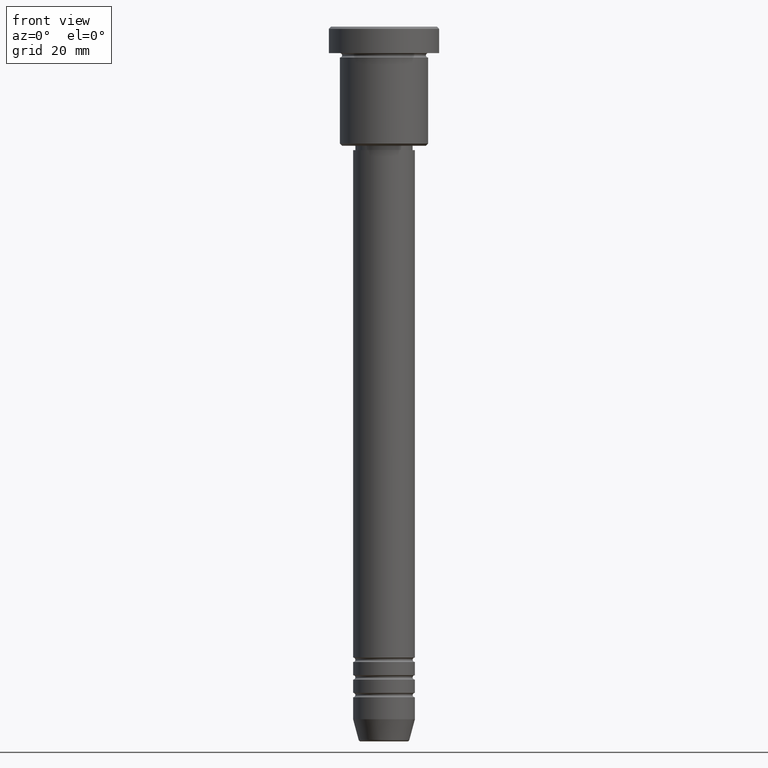
[diagram: clean part render]
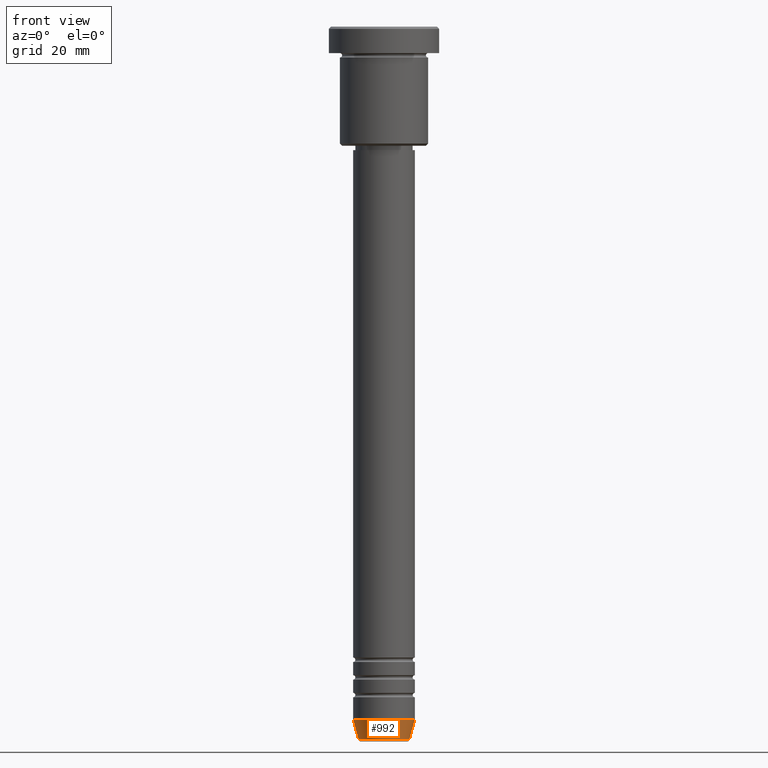
[diagram: same view with one face highlighted and labeled with its STEP entity id]
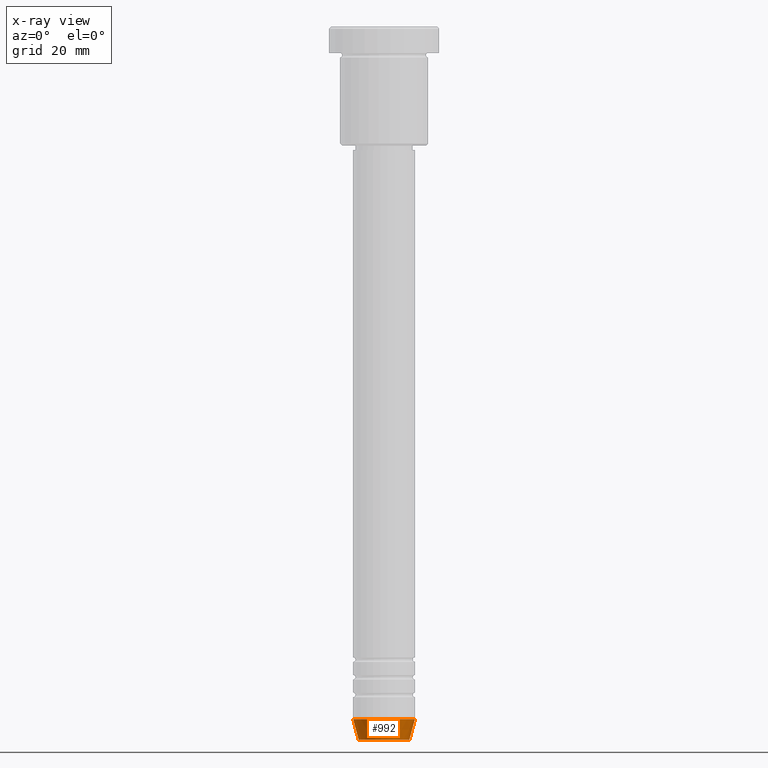
[diagram: x-ray of the same camera — body ghosted, the highlighted face saturated]
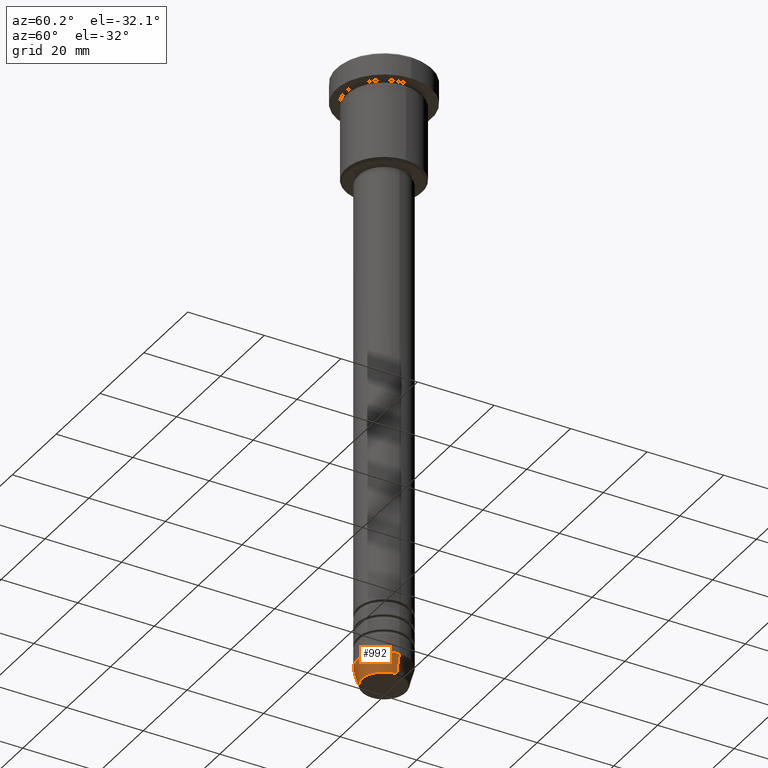
[diagram: same view with one face highlighted and labeled with its STEP entity id]
A machine part, front view. The second image highlights one B-rep face of the part: STEP entity #992.
The next image is the same camera in x-ray: the body ghosted, the highlighted face saturated — about 0% of this face is hidden behind the body in this view.
A second angle (auxiliary view) of the same face is appended — the face is thin or edge-on in the first view.
In plain terms, the highlighted conical surface has half-angle 15 deg.
Its self-contained STEP definition (entity closure, byte-faithful):
#23 = DIRECTION ( 'NONE',  ( 1.000000000000000000, 0.000000000000000000, 0.000000000000000000 ) ) ;
#74 = ORIENTED_EDGE ( 'NONE', *, *, #1054, .T. ) ;
#86 = VERTEX_POINT ( 'NONE', #174 ) ;
#100 = EDGE_CURVE ( 'NONE', #884, #886, #306, .T. ) ;
#105 = DIRECTION ( 'NONE',  ( 1.000000000000000000, 0.000000000000000000, 0.000000000000000000 ) ) ;
#114 = DIRECTION ( 'NONE',  ( -0.000000000000000000, -0.000000000000000000, 1.000000000000000000 ) ) ;
#131 = AXIS2_PLACEMENT_3D ( 'NONE', #848, #114, #23 ) ;
#151 = VERTEX_POINT ( 'NONE', #686 ) ;
#153 = CARTESIAN_POINT ( 'NONE',  ( 0.000000000000000000, 0.000000000000000000, -157.0000000000000284 ) ) ;
#174 = CARTESIAN_POINT ( 'NONE',  ( 5.759553456999435994, 0.000000000000000000, -161.6294095225512706 ) ) ;
#196 = ORIENTED_EDGE ( 'NONE', *, *, #567, .T. ) ;
#213 = AXIS2_PLACEMENT_3D ( 'NONE', #393, #760, #105 ) ;
#228 = VECTOR ( 'NONE', #1074, 1000.000000000000000 ) ;
#293 = CARTESIAN_POINT ( 'NONE',  ( -7.000000000000000000, 8.572527594031473190E-16, -157.0000000000000284 ) ) ;
#306 = LINE ( 'NONE', #389, #228 ) ;
#339 = CIRCLE ( 'NONE', #730, 7.000000000000000000 ) ;
#389 = CARTESIAN_POINT ( 'NONE',  ( -7.000000000000000000, 8.572527594031473190E-16, -157.0000000000000284 ) ) ;
#393 = CARTESIAN_POINT ( 'NONE',  ( 0.000000000000000000, 0.000000000000000000, -157.0000000000000284 ) ) ;
#506 = VECTOR ( 'NONE', #802, 1000.000000000000000 ) ;
#528 = CONICAL_SURFACE ( 'NONE', #213, 7.000000000000000000, 0.2617993877991500740 ) ;
#567 = EDGE_CURVE ( 'NONE', #884, #86, #576, .T. ) ;
#576 = CIRCLE ( 'NONE', #131, 5.759553456999435994 ) ;
#628 = LINE ( 'NONE', #1146, #506 ) ;
#686 = CARTESIAN_POINT ( 'NONE',  ( 7.000000000000000000, 0.000000000000000000, -157.0000000000000284 ) ) ;
#730 = AXIS2_PLACEMENT_3D ( 'NONE', #153, #981, #1160 ) ;
#760 = DIRECTION ( 'NONE',  ( -0.000000000000000000, -0.000000000000000000, 1.000000000000000000 ) ) ;
#802 = DIRECTION ( 'NONE',  ( 0.2588190451025213501, 0.000000000000000000, 0.9659258262890680902 ) ) ;
#831 = ORIENTED_EDGE ( 'NONE', *, *, #100, .F. ) ;
#848 = CARTESIAN_POINT ( 'NONE',  ( 0.000000000000000000, 0.000000000000000000, -161.6294095225512706 ) ) ;
#884 = VERTEX_POINT ( 'NONE', #1131 ) ;
#886 = VERTEX_POINT ( 'NONE', #293 ) ;
#933 = FACE_OUTER_BOUND ( 'NONE', #952, .T. ) ;
#952 = EDGE_LOOP ( 'NONE', ( #831, #196, #74, #1084 ) ) ;
#981 = DIRECTION ( 'NONE',  ( -0.000000000000000000, -0.000000000000000000, 1.000000000000000000 ) ) ;
#992 = ADVANCED_FACE ( 'NONE', ( #933 ), #528, .T. ) ;
#1054 = EDGE_CURVE ( 'NONE', #86, #151, #628, .T. ) ;
#1074 = DIRECTION ( 'NONE',  ( -0.2588190451025213501, 3.169619151431772337E-17, 0.9659258262890680902 ) ) ;
#1084 = ORIENTED_EDGE ( 'NONE', *, *, #1124, .F. ) ;
#1124 = EDGE_CURVE ( 'NONE', #886, #151, #339, .T. ) ;
#1131 = CARTESIAN_POINT ( 'NONE',  ( -5.759553456999435994, 7.812973149831951773E-16, -161.6294095225512706 ) ) ;
#1146 = CARTESIAN_POINT ( 'NONE',  ( 7.000000000000000000, 0.000000000000000000, -157.0000000000000284 ) ) ;
#1160 = DIRECTION ( 'NONE',  ( 1.000000000000000000, 0.000000000000000000, 0.000000000000000000 ) ) ;